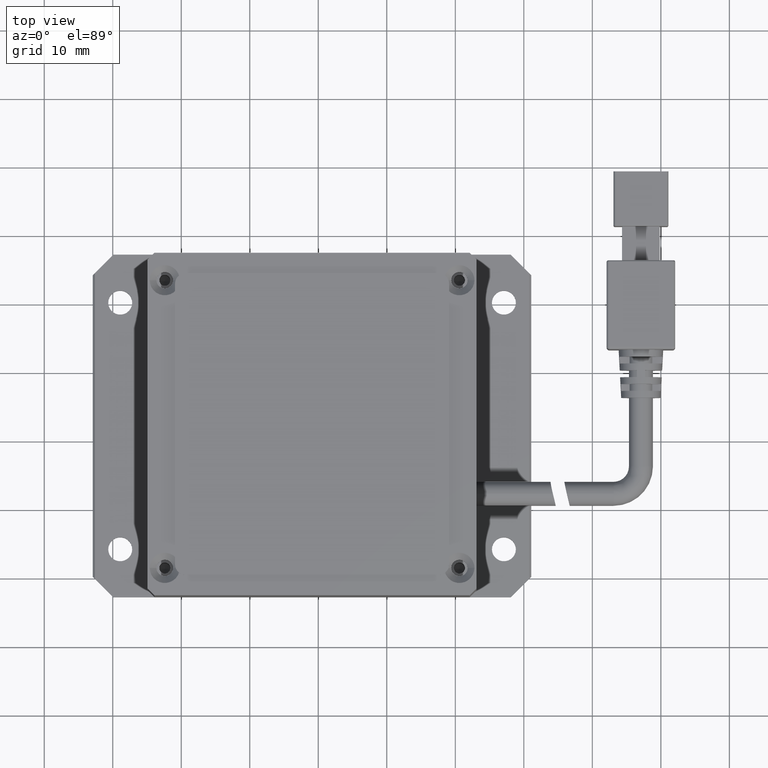
[diagram: clean part render]
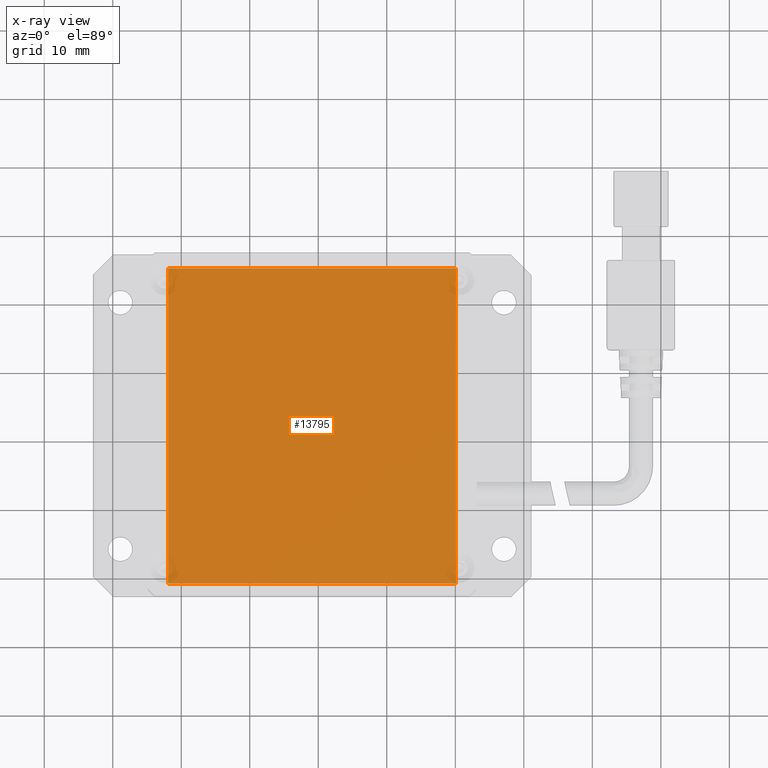
[diagram: x-ray — body ghosted, one internal face saturated and labeled with its STEP entity id]
A machine part, top view, then the same camera in x-ray: the body is ghosted and one INTERNAL B-rep face — a face not visible from any outside direction — is saturated and labeled: STEP entity #13795.
In plain terms, the highlighted planar face has unit normal (0, -0, 1).
Its self-contained STEP definition (entity closure, byte-faithful):
#576 = CARTESIAN_POINT ( 'NONE',  ( 20.09316533027873300, -20.70904925544096300, -1.630813539765796300E-011 ) ) ;
#1222 = ORIENTED_EDGE ( 'NONE', *, *, #5855, .T. ) ;
#1297 = LINE ( 'NONE', #2805, #17615 ) ;
#2053 = FACE_OUTER_BOUND ( 'NONE', #4989, .T. ) ;
#2769 = VECTOR ( 'NONE', #6513, 1000.000000000000000 ) ;
#2805 = CARTESIAN_POINT ( 'NONE',  ( 20.09316533027873000, 25.29095074455903000, -1.630813539765796300E-011 ) ) ;
#2889 = DIRECTION ( 'NONE',  ( 0.0000000000000000000, -0.0000000000000000000, 1.000000000000000000 ) ) ;
#3030 = VERTEX_POINT ( 'NONE', #14304 ) ;
#3082 = CARTESIAN_POINT ( 'NONE',  ( -21.90683466972126000, -20.70904925544096300, -1.630813539765796300E-011 ) ) ;
#3854 = EDGE_CURVE ( 'NONE', #13900, #10254, #17447, .T. ) ;
#3923 = CARTESIAN_POINT ( 'NONE',  ( -21.90683466972126700, 25.29095074455903000, -1.630813539765796300E-011 ) ) ;
#4235 = ORIENTED_EDGE ( 'NONE', *, *, #20218, .T. ) ;
#4813 = VECTOR ( 'NONE', #5451, 1000.000000000000000 ) ;
#4989 = EDGE_LOOP ( 'NONE', ( #14044, #4235, #1222, #9895 ) ) ;
#5451 = DIRECTION ( 'NONE',  ( -1.508455196501571900E-016, 1.000000000000000000, 0.0000000000000000000 ) ) ;
#5855 = EDGE_CURVE ( 'NONE', #3030, #16227, #14889, .T. ) ;
#6003 = PLANE ( 'NONE',  #7201 ) ;
#6185 = CARTESIAN_POINT ( 'NONE',  ( 20.09316533027873300, -20.70904925544096300, -1.630813539765796300E-011 ) ) ;
#6513 = DIRECTION ( 'NONE',  ( 7.542275982507859600E-017, -1.000000000000000000, 0.0000000000000000000 ) ) ;
#7115 = LINE ( 'NONE', #6185, #10793 ) ;
#7201 = AXIS2_PLACEMENT_3D ( 'NONE', #12319, #2889, #13924 ) ;
#7775 = DIRECTION ( 'NONE',  ( -1.000000000000000000, 0.0000000000000000000, 0.0000000000000000000 ) ) ;
#8845 = CARTESIAN_POINT ( 'NONE',  ( -21.90683466972126700, 25.29095074455903000, -1.630813539765796300E-011 ) ) ;
#9895 = ORIENTED_EDGE ( 'NONE', *, *, #10987, .T. ) ;
#10254 = VERTEX_POINT ( 'NONE', #8845 ) ;
#10793 = VECTOR ( 'NONE', #7775, 1000.000000000000000 ) ;
#10987 = EDGE_CURVE ( 'NONE', #16227, #13900, #7115, .T. ) ;
#12319 = CARTESIAN_POINT ( 'NONE',  ( -0.9068346697212632500, 2.290950744559034900, -1.630813539765796300E-011 ) ) ;
#13795 = ADVANCED_FACE ( 'NONE', ( #2053 ), #6003, .F. ) ;
#13900 = VERTEX_POINT ( 'NONE', #3082 ) ;
#13906 = DIRECTION ( 'NONE',  ( 1.000000000000000000, -0.0000000000000000000, -0.0000000000000000000 ) ) ;
#13924 = DIRECTION ( 'NONE',  ( 0.0000000000000000000, 1.000000000000000000, 0.0000000000000000000 ) ) ;
#14044 = ORIENTED_EDGE ( 'NONE', *, *, #3854, .T. ) ;
#14304 = CARTESIAN_POINT ( 'NONE',  ( 20.09316533027873300, 25.29095074455903000, -1.630813539765796300E-011 ) ) ;
#14889 = LINE ( 'NONE', #16001, #2769 ) ;
#16001 = CARTESIAN_POINT ( 'NONE',  ( 20.09316533027873000, 25.29095074455903000, -1.630813539765796300E-011 ) ) ;
#16227 = VERTEX_POINT ( 'NONE', #576 ) ;
#17447 = LINE ( 'NONE', #3923, #4813 ) ;
#17615 = VECTOR ( 'NONE', #13906, 1000.000000000000000 ) ;
#20218 = EDGE_CURVE ( 'NONE', #10254, #3030, #1297, .T. ) ;